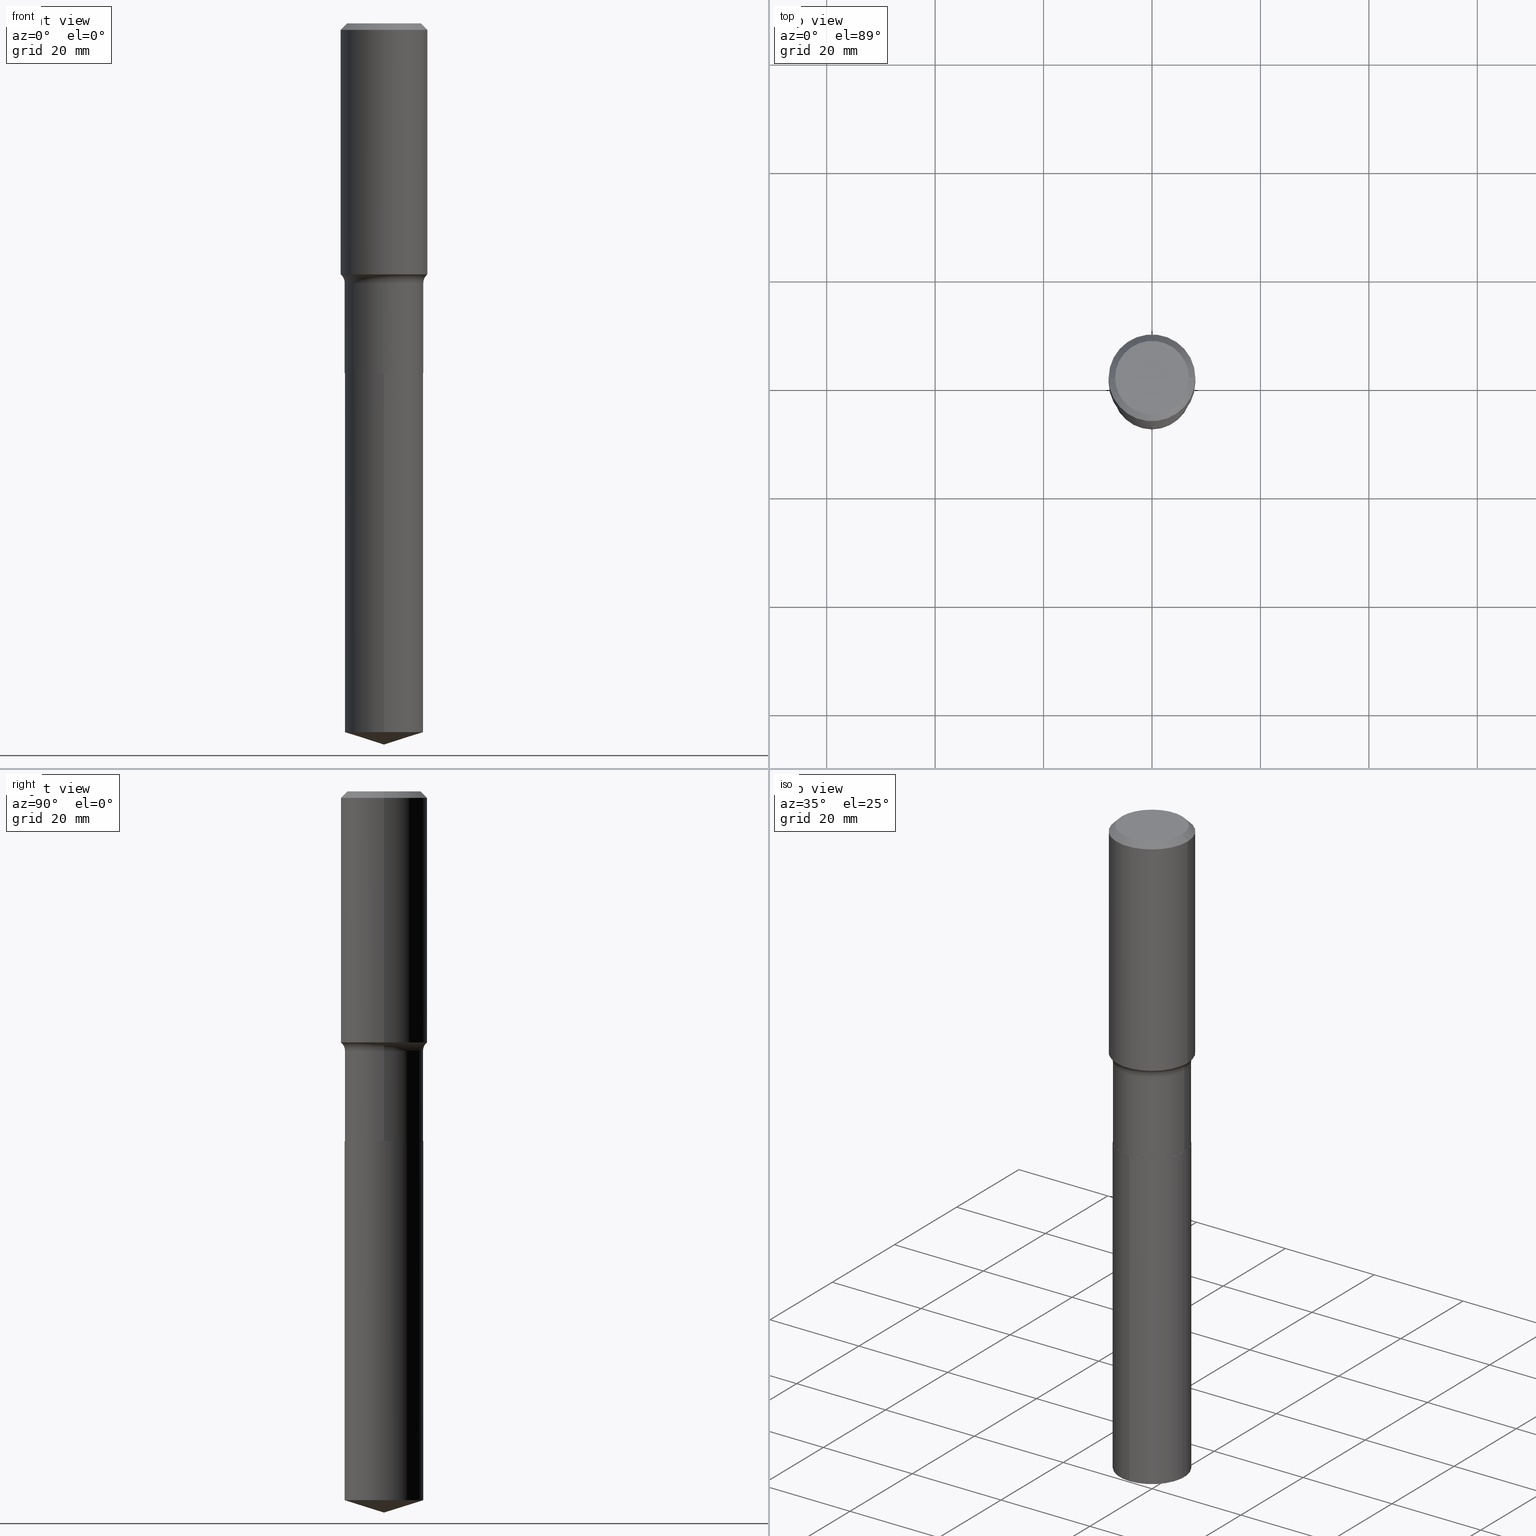
[diagram: canonical four-view strip — front | top / right | iso, engineering-drawing reading convention]
A machine part, canonical four-view strip (front | top / right | iso — engineering-drawing reading convention). The complete STEP part file that produces these views, byte-faithful:
ISO-10303-21;
HEADER;
FILE_DESCRIPTION (( 'STEP AP203' ),
    '1' );
FILE_NAME ('64201.STEP',
    '2024-04-19T15:35:36',
    ( '' ),
    ( '' ),
    'SwSTEP 2.0',
    'SolidWorks 2023',
    '' );
FILE_SCHEMA (( 'CONFIG_CONTROL_DESIGN' ));
ENDSEC;

DATA;
#1 = DIRECTION ( 'NONE',  ( -2.445468806185136597E-29, 3.491481338843145583E-15, 1.000000000000000000 ) ) ;
#2 = LINE ( 'NONE', #328, #372 ) ;
#3 = EDGE_CURVE ( 'NONE', #128, #392, #240, .T. ) ;
#4 = APPROVAL_STATUS ( 'not_yet_approved' ) ;
#5 = DIRECTION ( 'NONE',  ( 1.000000000000000000, -6.982962677686265922E-15, 0.000000000000000000 ) ) ;
#6 = CIRCLE ( 'NONE', #317, 0.2849499999999999811 ) ;
#7 = DIRECTION ( 'NONE',  ( -2.445468806185136597E-29, 3.491481338843145583E-15, 1.000000000000000000 ) ) ;
#8 = VECTOR ( 'NONE', #99, 39.37007874015748143 ) ;
#9 = DATE_TIME_ROLE ( 'creation_date' ) ;
#10 = DIRECTION ( 'NONE',  ( -2.445468806185136597E-29, 3.491481338843145583E-15, 1.000000000000000000 ) ) ;
#11 = FACE_OUTER_BOUND ( 'NONE', #176, .T. ) ;
#12 = ORIENTED_EDGE ( 'NONE', *, *, #414, .T. ) ;
#13 = ADVANCED_FACE ( 'NONE', ( #143 ), #189, .T. ) ;
#14 = FACE_OUTER_BOUND ( 'NONE', #419, .T. ) ;
#15 = VECTOR ( 'NONE', #369, 39.37007874015748854 ) ;
#16 = APPROVAL_PERSON_ORGANIZATION ( #97, #462, #125 ) ;
#17 = DIRECTION ( 'NONE',  ( -2.445468806185136877E-29, 3.491481338843145188E-15, 1.000000000000000000 ) ) ;
#18 = DIRECTION ( 'NONE',  ( -2.445468806185136597E-29, 3.491481338843145583E-15, 1.000000000000000000 ) ) ;
#19 = EDGE_LOOP ( 'NONE', ( #323, #160, #348, #206 ) ) ;
#20 = CONICAL_SURFACE ( 'NONE', #155, 124.8659371009152892, 1.265363707695892126 ) ;
#21 = AXIS2_PLACEMENT_3D ( 'NONE', #212, #404, #324 ) ;
#22 = CC_DESIGN_APPROVAL ( #238, ( #223 ) ) ;
#23 = VERTEX_POINT ( 'NONE', #256 ) ;
#24 = DIRECTION ( 'NONE',  ( -6.982962677686265922E-15, -1.000000000000000000, 3.828128209723963046E-15 ) ) ;
#25 = EDGE_CURVE ( 'NONE', #57, #211, #2, .T. ) ;
#26 = ORIENTED_EDGE ( 'NONE', *, *, #111, .F. ) ;
#27 = ADVANCED_FACE ( 'NONE', ( #224 ), #36, .T. ) ;
#28 = ORIENTED_EDGE ( 'NONE', *, *, #435, .F. ) ;
#29 = CIRCLE ( 'NONE', #399, 0.2854499999999999815 ) ;
#30 = AXIS2_PLACEMENT_3D ( 'NONE', #463, #126, #5 ) ;
#31 = EDGE_LOOP ( 'NONE', ( #12, #62 ) ) ;
#32 = DIRECTION ( 'NONE',  ( 1.000000000000000000, -6.982962677686265922E-15, 0.000000000000000000 ) ) ;
#33 = PLANE ( 'NONE',  #311 ) ;
#34 = DIRECTION ( 'NONE',  ( 1.000000000000000000, -6.982962677686263555E-15, 0.000000000000000000 ) ) ;
#35 = DIRECTION ( 'NONE',  ( -6.982962677686265922E-15, -1.000000000000000000, 3.828128209723963046E-15 ) ) ;
#36 = CONICAL_SURFACE ( 'NONE', #178, 0.2849499999999999811, 0.7853981633973801113 ) ;
#37 = CIRCLE ( 'NONE', #350, 0.3149500000000001743 ) ;
#38 = CARTESIAN_POINT ( 'NONE',  ( 6.210023486426536087E-29, -8.866267711858284157E-15, -2.539400000000000102 ) ) ;
#39 = APPROVAL_PERSON_ORGANIZATION ( #270, #471, #119 ) ;
#40 = ADVANCED_FACE ( 'NONE', ( #183 ), #444, .T. ) ;
#41 = LINE ( 'NONE', #334, #15 ) ;
#42 = DIRECTION ( 'NONE',  ( -2.445468806185136597E-29, 3.491481338843145583E-15, 1.000000000000000000 ) ) ;
#43 = FACE_OUTER_BOUND ( 'NONE', #319, .T. ) ;
#44 = DIRECTION ( 'NONE',  ( -2.445468806185136597E-29, 3.491481338843145583E-15, 1.000000000000000000 ) ) ;
#45 = VECTOR ( 'NONE', #336, 39.37007874015748143 ) ;
#46 = AXIS2_PLACEMENT_3D ( 'NONE', #458, #276, #347 ) ;
#47 = DATE_AND_TIME ( #113, #383 ) ;
#48 = DIRECTION ( 'NONE',  ( -0.7071067811865455743, 2.468850131082236945E-15, -0.7071067811865493491 ) ) ;
#49 = VERTEX_POINT ( 'NONE', #70 ) ;
#50 = COORDINATED_UNIVERSAL_TIME_OFFSET ( 5, 0, .BEHIND. ) ;
#51 = LINE ( 'NONE', #237, #335 ) ;
#52 = PRODUCT_RELATED_PRODUCT_CATEGORY ( 'detail', '', ( #75 ) ) ;
#53 = FACE_OUTER_BOUND ( 'NONE', #255, .T. ) ;
#54 = AXIS2_PLACEMENT_3D ( 'NONE', #340, #310, #118 ) ;
#55 = ADVANCED_FACE ( 'NONE', ( #376 ), #333, .F. ) ;
#56 = ORIENTED_EDGE ( 'NONE', *, *, #386, .F. ) ;
#57 = VERTEX_POINT ( 'NONE', #152 ) ;
#58 = PERSON_AND_ORGANIZATION ( #72, #483 ) ;
#59 = ORIENTED_EDGE ( 'NONE', *, *, #397, .F. ) ;
#60 = PRODUCT_DEFINITION ( 'UNKNOWN', '', #223, #304 ) ;
#61 = VECTOR ( 'NONE', #225, 39.37007874015748143 ) ;
#62 = ORIENTED_EDGE ( 'NONE', *, *, #63, .T. ) ;
#63 = EDGE_CURVE ( 'NONE', #393, #211, #29, .T. ) ;
#64 = ORIENTED_EDGE ( 'NONE', *, *, #374, .T. ) ;
#65 = DIRECTION ( 'NONE',  ( 7.105427357601001859E-15, 1.000000000000000000, -3.491481338843145583E-15 ) ) ;
#66 = VERTEX_POINT ( 'NONE', #263 ) ;
#67 = VECTOR ( 'NONE', #89, 39.37007874015748143 ) ;
#68 = DIRECTION ( 'NONE',  ( -6.982962677686265922E-15, -1.000000000000000000, 3.828128209723963046E-15 ) ) ;
#69 = CARTESIAN_POINT ( 'NONE',  ( -0.3149500000000000077, -1.025030018348669785E-15, -0.04724250000000026345 ) ) ;
#70 = CARTESIAN_POINT ( 'NONE',  ( 0.3149500000000001743, -8.560106517437202343E-15, -1.821811948795202252 ) ) ;
#71 = DIRECTION ( 'NONE',  ( -6.982962677686265133E-15, -1.000000000000000000, 3.500519750498698121E-15 ) ) ;
#72 = PERSON ( 'UNSPECIFIED', 'UNSPECIFIED', 'UNSPECIFIED', ('UNSPECIFIED'), ('UNSPECIFIED'), ('UNSPECIFIED') ) ;
#73 = ADVANCED_FACE ( 'NONE', ( #412 ), #20, .T. ) ;
#74 = APPROVAL_ROLE ( '' ) ;
#75 = PRODUCT ( '64201', '64201', '', ( #88 ) ) ;
#76 = CLOSED_SHELL ( 'NONE', ( #13, #478, #73, #40, #209 ) ) ;
#77 = CONICAL_SURFACE ( 'NONE', #365, 0.3149500000000000077, 0.7853981633974456145 ) ;
#78 = DIRECTION ( 'NONE',  ( -2.445329345240365459E-29, 3.491681054853681860E-15, 1.000000000000000000 ) ) ;
#79 = CC_DESIGN_APPROVAL ( #471, ( #60 ) ) ;
#80 = PERSON_AND_ORGANIZATION ( #72, #483 ) ;
#81 = DIRECTION ( 'NONE',  ( 1.000000000000000000, -6.982962677686263555E-15, 0.000000000000000000 ) ) ;
#82 = COORDINATED_UNIVERSAL_TIME_OFFSET ( 5, 0, .BEHIND. ) ;
#83 = DIRECTION ( 'NONE',  ( 1.000000000000000000, -6.982962677686265922E-15, 0.000000000000000000 ) ) ;
#84 = DIRECTION ( 'NONE',  ( 6.982962677686265922E-15, 1.000000000000000000, -3.491681054853681860E-15 ) ) ;
#85 = VECTOR ( 'NONE', #257, 39.37007874015748854 ) ;
#86 = EDGE_CURVE ( 'NONE', #434, #368, #261, .T. ) ;
#87 = LOCAL_TIME ( 11, 35, 36.00000000000000000, #50 ) ;
#88 = MECHANICAL_CONTEXT ( 'NONE', #345, 'mechanical' ) ;
#89 = DIRECTION ( 'NONE',  ( -2.445468806185136877E-29, 3.491481338843145188E-15, 1.000000000000000000 ) ) ;
#90 = CALENDAR_DATE ( 2024, 19, 4 ) ;
#91 = CARTESIAN_POINT ( 'NONE',  ( -0.3149500000000001743, -4.122968075823476488E-15, -1.821811948795202252 ) ) ;
#92 = EDGE_CURVE ( 'NONE', #66, #141, #258, .T. ) ;
#93 = DIRECTION ( 'NONE',  ( -1.000000000000000000, 6.982962677686266711E-15, 0.000000000000000000 ) ) ;
#94 = AXIS2_PLACEMENT_3D ( 'NONE', #121, #44, #165 ) ;
#95 = AXIS2_PLACEMENT_3D ( 'NONE', #492, #354, #298 ) ;
#96 = ORIENTED_EDGE ( 'NONE', *, *, #142, .T. ) ;
#97 = PERSON_AND_ORGANIZATION ( #72, #483 ) ;
#98 = ORIENTED_EDGE ( 'NONE', *, *, #106, .F. ) ;
#99 = DIRECTION ( 'NONE',  ( -0.7071067811864992780, 7.493145998870180611E-15, 0.7071067811865957564 ) ) ;
#100 = ORIENTED_EDGE ( 'NONE', *, *, #186, .T. ) ;
#101 = EDGE_CURVE ( 'NONE', #392, #128, #6, .T. ) ;
#102 = ORIENTED_EDGE ( 'NONE', *, *, #101, .T. ) ;
#103 = CARTESIAN_POINT ( 'NONE',  ( -0.2849499999999999811, -6.841576186309879206E-15, -2.539400000000000102 ) ) ;
#104 =( CONVERSION_BASED_UNIT ( 'INCH', #167 ) LENGTH_UNIT ( ) NAMED_UNIT ( #388 ) );
#105 = ORIENTED_EDGE ( 'NONE', *, *, #63, .F. ) ;
#106 = EDGE_CURVE ( 'NONE', #378, #477, #168, .T. ) ;
#107 = CARTESIAN_POINT ( 'NONE',  ( -8.346822120306016826E-28, 1.191851248845178902E-13, 34.13387874015747769 ) ) ;
#108 = AXIS2_PLACEMENT_3D ( 'NONE', #116, #42, #330 ) ;
#109 = CIRCLE ( 'NONE', #278, 0.3149500000000000077 ) ;
#110 = DIRECTION ( 'NONE',  ( -2.445329345240365459E-29, 3.491681054853681860E-15, 1.000000000000000000 ) ) ;
#111 = EDGE_CURVE ( 'NONE', #403, #23, #425, .T. ) ;
#112 = ORIENTED_EDGE ( 'NONE', *, *, #157, .T. ) ;
#113 = CALENDAR_DATE ( 2024, 19, 4 ) ;
#114 = ORIENTED_EDGE ( 'NONE', *, *, #275, .F. ) ;
#115 = CARTESIAN_POINT ( 'NONE',  ( 1.280423351754760394E-28, -1.828314033942484926E-14, -5.236200000000000188 ) ) ;
#116 = CARTESIAN_POINT ( 'NONE',  ( 4.604573215165994355E-29, -6.574110212907759252E-15, -1.882900000000000240 ) ) ;
#117 = DIRECTION ( 'NONE',  ( 2.438088387897960049E-29, -3.491481338843145188E-15, -1.000000000000000000 ) ) ;
#118 = DIRECTION ( 'NONE',  ( 1.000000000000000000, -6.982962677686265922E-15, 0.000000000000000000 ) ) ;
#119 = APPROVAL_ROLE ( '' ) ;
#120 = ADVANCED_FACE ( 'NONE', ( #53 ), #124, .F. ) ;
#121 = CARTESIAN_POINT ( 'NONE',  ( -1.001697619218022568E-46, 1.430158722866391086E-32, 4.096137381448112218E-18 ) ) ;
#122 = UNCERTAINTY_MEASURE_WITH_UNIT (LENGTH_MEASURE( 1.000000000000000082E-05 ), #104, 'distance_accuracy_value', 'NONE');
#123 = CARTESIAN_POINT ( 'NONE',  ( 1.155300600762019572E-30, -1.649463071502982046E-16, -0.04724250000000026345 ) ) ;
#124 = TOROIDAL_SURFACE ( 'NONE', #303, 0.3634499999999999398, 0.07799999999999995826 ) ;
#125 = APPROVAL_ROLE ( '' ) ;
#126 = DIRECTION ( 'NONE',  ( -2.445468806185136597E-29, 3.491481338843145583E-15, 1.000000000000000000 ) ) ;
#127 = CYLINDRICAL_SURFACE ( 'NONE', #454, 0.2854500000000000370 ) ;
#128 = VERTEX_POINT ( 'NONE', #346 ) ;
#129 = AXIS2_PLACEMENT_3D ( 'NONE', #285, #65, #136 ) ;
#130 =( NAMED_UNIT ( * ) SI_UNIT ( $, .STERADIAN. ) SOLID_ANGLE_UNIT ( ) );
#131 = EDGE_LOOP ( 'NONE', ( #251, #100, #355, #244 ) ) ;
#132 = APPROVAL_DATE_TIME ( #236, #462 ) ;
#133 = DIRECTION ( 'NONE',  ( 1.000000000000000000, -6.982962677686263555E-15, 0.000000000000000000 ) ) ;
#134 = FACE_OUTER_BOUND ( 'NONE', #169, .T. ) ;
#135 = ORIENTED_EDGE ( 'NONE', *, *, #92, .T. ) ;
#136 = DIRECTION ( 'NONE',  ( -1.000000000000000000, 7.105427357601001859E-15, 0.000000000000000000 ) ) ;
#137 =( NAMED_UNIT ( * ) PLANE_ANGLE_UNIT ( ) SI_UNIT ( $, .RADIAN. ) );
#138 = ORIENTED_EDGE ( 'NONE', *, *, #142, .F. ) ;
#139 = AXIS2_PLACEMENT_3D ( 'NONE', #371, #292, #332 ) ;
#140 = VECTOR ( 'NONE', #171, 39.37007874015748143 ) ;
#141 = VERTEX_POINT ( 'NONE', #467 ) ;
#142 = EDGE_CURVE ( 'NONE', #208, #378, #51, .T. ) ;
#143 = FACE_OUTER_BOUND ( 'NONE', #19, .T. ) ;
#144 = LINE ( 'NONE', #289, #85 ) ;
#145 = CARTESIAN_POINT ( 'NONE',  ( 6.210023486426536087E-29, -8.866267711858284157E-15, -2.539400000000000102 ) ) ;
#146 = DIRECTION ( 'NONE',  ( -2.445468806185136597E-29, 3.491481338843145583E-15, 1.000000000000000000 ) ) ;
#147 = AXIS2_PLACEMENT_3D ( 'NONE', #489, #146, #294 ) ;
#148 = ORIENTED_EDGE ( 'NONE', *, *, #175, .F. ) ;
#149 = EDGE_CURVE ( 'NONE', #49, #208, #164, .T. ) ;
#150 = CARTESIAN_POINT ( 'NONE',  ( 6.210023486426536087E-29, -8.866267711858284157E-15, -2.539400000000000102 ) ) ;
#151 = SECURITY_CLASSIFICATION_LEVEL ( 'unclassified' ) ;
#152 = CARTESIAN_POINT ( 'NONE',  ( -1.993286696345419132E-15, -0.2854500000000180782, -5.146197960714494535 ) ) ;
#153 = FACE_OUTER_BOUND ( 'NONE', #218, .T. ) ;
#154 = CC_DESIGN_PERSON_AND_ORGANIZATION_ASSIGNMENT ( #377, #415, ( #223 ) ) ;
#155 = AXIS2_PLACEMENT_3D ( 'NONE', #107, #110, #71 ) ;
#156 = DIRECTION ( 'NONE',  ( -2.445468806185136597E-29, 3.491481338843145583E-15, 1.000000000000000000 ) ) ;
#157 = EDGE_CURVE ( 'NONE', #406, #325, #259, .T. ) ;
#158 = PERSON_AND_ORGANIZATION_ROLE ( 'creator' ) ;
#159 = DIRECTION ( 'NONE',  ( 1.000000000000000000, -6.982962677686261977E-15, 0.000000000000000000 ) ) ;
#160 = ORIENTED_EDGE ( 'NONE', *, *, #405, .T. ) ;
#161 = DIRECTION ( 'NONE',  ( -2.445468806185136597E-29, 3.491481338843145583E-15, 1.000000000000000000 ) ) ;
#162 = ORIENTED_EDGE ( 'NONE', *, *, #3, .F. ) ;
#163 = CARTESIAN_POINT ( 'NONE',  ( -1.001697619218022568E-46, 1.430158722866391086E-32, 4.096137381448112218E-18 ) ) ;
#164 = CIRCLE ( 'NONE', #54, 0.3149500000000001743 ) ;
#165 = DIRECTION ( 'NONE',  ( 1.000000000000000000, -6.982962677686267499E-15, 4.876236838442819371E-29 ) ) ;
#166 = CALENDAR_DATE ( 2024, 19, 4 ) ;
#167 = LENGTH_MEASURE_WITH_UNIT ( LENGTH_MEASURE( 0.02539999999999999897 ), #250 );
#168 = CIRCLE ( 'NONE', #293, 0.3149500000000000077 ) ;
#169 = EDGE_LOOP ( 'NONE', ( #56, #461, #59 ) ) ;
#170 = VECTOR ( 'NONE', #48, 39.37007874015748854 ) ;
#171 = DIRECTION ( 'NONE',  ( -2.445468806185136877E-29, 3.491481338843145188E-15, 1.000000000000000000 ) ) ;
#172 = AXIS2_PLACEMENT_3D ( 'NONE', #448, #264, #35 ) ;
#173 = ORIENTED_EDGE ( 'NONE', *, *, #381, .T. ) ;
#174 = CARTESIAN_POINT ( 'NONE',  ( 0.2677074999999999871, -2.081133459643432233E-15, 4.096137381461924987E-18 ) ) ;
#175 = EDGE_CURVE ( 'NONE', #325, #406, #400, .T. ) ;
#176 = EDGE_LOOP ( 'NONE', ( #203, #407, #364, #475 ) ) ;
#177 = ORIENTED_EDGE ( 'NONE', *, *, #186, .F. ) ;
#178 = AXIS2_PLACEMENT_3D ( 'NONE', #187, #181, #81 ) ;
#179 = CIRCLE ( 'NONE', #465, 0.2854499999999999815 ) ;
#180 = ORIENTED_EDGE ( 'NONE', *, *, #192, .F. ) ;
#181 = DIRECTION ( 'NONE',  ( -2.445468806185136597E-29, 3.491481338843145583E-15, 1.000000000000000000 ) ) ;
#182 = FACE_OUTER_BOUND ( 'NONE', #436, .T. ) ;
#183 = FACE_OUTER_BOUND ( 'NONE', #362, .T. ) ;
#184 = CARTESIAN_POINT ( 'NONE',  ( 0.2854499999999999815, -8.567396909253303813E-15, -1.882900000000000240 ) ) ;
#185 = CIRCLE ( 'NONE', #30, 0.2854500000000000925 ) ;
#186 = EDGE_CURVE ( 'NONE', #141, #66, #185, .T. ) ;
#187 = CARTESIAN_POINT ( 'NONE',  ( 6.210023486426536087E-29, -8.866267711858284157E-15, -2.539400000000000102 ) ) ;
#188 = PERSON_AND_ORGANIZATION_ROLE ( 'design_supplier' ) ;
#189 = CYLINDRICAL_SURFACE ( 'NONE', #389, 0.2854499999999999815 ) ;
#190 = DIRECTION ( 'NONE',  ( 1.000000000000000000, -6.982962677686267499E-15, 4.876236838442819371E-29 ) ) ;
#191 = CYLINDRICAL_SURFACE ( 'NONE', #288, 0.3149500000000000632 ) ;
#192 = EDGE_CURVE ( 'NONE', #406, #378, #305, .T. ) ;
#193 = DATE_AND_TIME ( #421, #87 ) ;
#194 = AXIS2_PLACEMENT_3D ( 'NONE', #219, #450, #459 ) ;
#195 = DIRECTION ( 'NONE',  ( 1.000000000000000000, -6.982962677686265922E-15, 0.000000000000000000 ) ) ;
#196 = DIRECTION ( 'NONE',  ( 1.000000000000000000, -6.982962677686265922E-15, 4.876176775795935232E-29 ) ) ;
#197 = EDGE_CURVE ( 'NONE', #477, #378, #109, .T. ) ;
#198 = PERSON_AND_ORGANIZATION ( #72, #483 ) ;
#199 = CARTESIAN_POINT ( 'NONE',  ( 4.604573215165994355E-29, -6.574110212907759252E-15, -1.882900000000000240 ) ) ;
#200 = ORIENTED_EDGE ( 'NONE', *, *, #175, .T. ) ;
#201 = DIRECTION ( 'NONE',  ( 1.000000000000000000, -6.982962677686269077E-15, 4.883557194083112901E-29 ) ) ;
#202 = LOCAL_TIME ( 11, 35, 36.00000000000000000, #82 ) ;
#203 = ORIENTED_EDGE ( 'NONE', *, *, #374, .F. ) ;
#204 = ADVANCED_FACE ( 'NONE', ( #314 ), #207, .T. ) ;
#205 = SHAPE_DEFINITION_REPRESENTATION ( #315, #360 ) ;
#206 = ORIENTED_EDGE ( 'NONE', *, *, #25, .F. ) ;
#207 = CONICAL_SURFACE ( 'NONE', #46, 0.3149500000000000077, 0.7853981633974456145 ) ;
#208 = VERTEX_POINT ( 'NONE', #91 ) ;
#209 = ADVANCED_FACE ( 'NONE', ( #344 ), #274, .F. ) ;
#210 = ORIENTED_EDGE ( 'NONE', *, *, #92, .F. ) ;
#211 = VERTEX_POINT ( 'NONE', #427 ) ;
#212 = CARTESIAN_POINT ( 'NONE',  ( 6.210023486426536087E-29, -8.866267711858284157E-15, -2.539400000000000102 ) ) ;
#213 = CONICAL_SURFACE ( 'NONE', #373, 0.2849499999999999811, 0.7853981633973801113 ) ;
#214 = CC_DESIGN_DATE_AND_TIME_ASSIGNMENT ( #193, #9, ( #60 ) ) ;
#215 = CARTESIAN_POINT ( 'NONE',  ( 1.280494802269837352E-28, -1.828212602175054019E-14, -5.236200000000000188 ) ) ;
#216 = ORIENTED_EDGE ( 'NONE', *, *, #197, .F. ) ;
#217 = CARTESIAN_POINT ( 'NONE',  ( -8.346822120306016826E-28, 1.191851248845178902E-13, 34.13387874015747769 ) ) ;
#218 = EDGE_LOOP ( 'NONE', ( #112, #200 ) ) ;
#219 = CARTESIAN_POINT ( 'NONE',  ( 1.258450303687443268E-28, -1.796837476511629986E-14, -5.146197960714495423 ) ) ;
#220 = CC_DESIGN_PERSON_AND_ORGANIZATION_ASSIGNMENT ( #457, #231, ( #75 ) ) ;
#221 = CIRCLE ( 'NONE', #129, 0.07799999999999995826 ) ;
#222 = APPROVAL_DATE_TIME ( #307, #238 ) ;
#223 = PRODUCT_DEFINITION_FORMATION_WITH_SPECIFIED_SOURCE ( 'ANY', '', #75, .NOT_KNOWN. ) ;
#224 = FACE_OUTER_BOUND ( 'NONE', #253, .T. ) ;
#225 = DIRECTION ( 'NONE',  ( -2.445468806185136877E-29, 3.491481338843145188E-15, 1.000000000000000000 ) ) ;
#226 = APPROVAL_STATUS ( 'not_yet_approved' ) ;
#227 = EDGE_CURVE ( 'NONE', #49, #403, #326, .T. ) ;
#228 = EDGE_LOOP ( 'NONE', ( #280, #472, #484, #296 ) ) ;
#229 = DIRECTION ( 'NONE',  ( -1.000000000000000000, 6.982962677686265922E-15, -4.876176775795935793E-29 ) ) ;
#230 = DIRECTION ( 'NONE',  ( -2.445468806185136597E-29, 3.491481338843145583E-15, 1.000000000000000000 ) ) ;
#231 = PERSON_AND_ORGANIZATION_ROLE ( 'design_owner' ) ;
#232 = AXIS2_PLACEMENT_3D ( 'NONE', #271, #470, #159 ) ;
#233 = CARTESIAN_POINT ( 'NONE',  ( 0.000000000000000000, 0.000000000000000000, 0.000000000000000000 ) ) ;
#234 = APPROVAL_DATE_TIME ( #47, #471 ) ;
#235 = EDGE_CURVE ( 'NONE', #49, #477, #308, .T. ) ;
#236 = DATE_AND_TIME ( #166, #466 ) ;
#237 = CARTESIAN_POINT ( 'NONE',  ( -0.3149500000000000632, 2.237854346276435985E-15, -1.549218606675782956E-29 ) ) ;
#238 = APPROVAL ( #226, 'UNSPECIFIED' ) ;
#239 = CARTESIAN_POINT ( 'NONE',  ( 4.455184291514020558E-29, -6.360822422099914050E-15, -1.821811948795202252 ) ) ;
#240 = CIRCLE ( 'NONE', #464, 0.2849499999999999811 ) ;
#241 = ORIENTED_EDGE ( 'NONE', *, *, #435, .T. ) ;
#242 = DATE_TIME_ROLE ( 'classification_date' ) ;
#243 = EDGE_CURVE ( 'NONE', #23, #403, #179, .T. ) ;
#244 = ORIENTED_EDGE ( 'NONE', *, *, #243, .F. ) ;
#245 = COORDINATED_UNIVERSAL_TIME_OFFSET ( 5, 0, .BEHIND. ) ;
#246 = DIRECTION ( 'NONE',  ( 1.000000000000000000, -6.982962677686265922E-15, 0.000000000000000000 ) ) ;
#247 = CC_DESIGN_PERSON_AND_ORGANIZATION_ASSIGNMENT ( #80, #158, ( #60 ) ) ;
#248 = ORIENTED_EDGE ( 'NONE', *, *, #313, .T. ) ;
#249 = FACE_OUTER_BOUND ( 'NONE', #131, .T. ) ;
#250 =( LENGTH_UNIT ( ) NAMED_UNIT ( * ) SI_UNIT ( $, .METRE. ) );
#251 = ORIENTED_EDGE ( 'NONE', *, *, #422, .F. ) ;
#252 = CYLINDRICAL_SURFACE ( 'NONE', #343, 0.2854500000000000370 ) ;
#253 = EDGE_LOOP ( 'NONE', ( #102, #248, #210, #28 ) ) ;
#254 = CARTESIAN_POINT ( 'NONE',  ( 6.210023486426536087E-29, -8.866267711858284157E-15, -2.539400000000000102 ) ) ;
#255 = EDGE_LOOP ( 'NONE', ( #114, #301, #269, #279 ) ) ;
#256 = CARTESIAN_POINT ( 'NONE',  ( -0.2854499999999999815, -5.691071852821104709E-15, -1.882900000000000240 ) ) ;
#257 = DIRECTION ( 'NONE',  ( 0.7071067811865455743, -7.319954787623248157E-15, -0.7071067811865493491 ) ) ;
#258 = CIRCLE ( 'NONE', #431, 0.2854500000000000925 ) ;
#259 = CIRCLE ( 'NONE', #432, 0.2677074999999999871 ) ;
#260 = ADVANCED_FACE ( 'NONE', ( #14 ), #127, .T. ) ;
#261 = LINE ( 'NONE', #215, #45 ) ;
#262 = CARTESIAN_POINT ( 'NONE',  ( 0.2849499999999999811, -1.085606292686498571E-14, -2.539400000000000102 ) ) ;
#263 = CARTESIAN_POINT ( 'NONE',  ( 0.2854500000000000925, -1.085780866753440800E-14, -2.538899999999999935 ) ) ;
#264 = DIRECTION ( 'NONE',  ( -2.445329345240365459E-29, 3.491681054853681860E-15, 1.000000000000000000 ) ) ;
#265 = ORIENTED_EDGE ( 'NONE', *, *, #381, .F. ) ;
#266 = CARTESIAN_POINT ( 'NONE',  ( 0.2849499999999999811, -1.085606292686498571E-14, -2.539400000000000102 ) ) ;
#267 = ADVANCED_FACE ( 'NONE', ( #11 ), #77, .T. ) ;
#268 = AXIS2_PLACEMENT_3D ( 'NONE', #352, #161, #195 ) ;
#269 = ORIENTED_EDGE ( 'NONE', *, *, #243, .T. ) ;
#270 = PERSON_AND_ORGANIZATION ( #72, #483 ) ;
#271 = CARTESIAN_POINT ( 'NONE',  ( 0.3634499999999999398, -9.112067998112831859E-15, -1.882900000000000240 ) ) ;
#272 = CARTESIAN_POINT ( 'NONE',  ( -0.2677074999999999871, 1.951864634611843833E-15, 4.096137381434750116E-18 ) ) ;
#273 = DIRECTION ( 'NONE',  ( 2.445329345240365179E-29, -3.491681054853681860E-15, -1.000000000000000000 ) ) ;
#274 = PLANE ( 'NONE',  #482 ) ;
#275 = EDGE_CURVE ( 'NONE', #208, #49, #37, .T. ) ;
#276 = DIRECTION ( 'NONE',  ( 2.445468806185136597E-29, -3.491481338843145583E-15, -1.000000000000000000 ) ) ;
#277 = DIRECTION ( 'NONE',  ( -2.445468806185136597E-29, 3.491481338843145583E-15, 1.000000000000000000 ) ) ;
#278 = AXIS2_PLACEMENT_3D ( 'NONE', #123, #10, #385 ) ;
#279 = ORIENTED_EDGE ( 'NONE', *, *, #227, .F. ) ;
#280 = ORIENTED_EDGE ( 'NONE', *, *, #329, .F. ) ;
#281 = MANIFOLD_SOLID_BREP ( 'Body-Move/Copy2[1]', #76 ) ;
#282 = LINE ( 'NONE', #103, #8 ) ;
#283 = DIRECTION ( 'NONE',  ( -6.982962677686265133E-15, -1.000000000000000000, 3.500519750498698121E-15 ) ) ;
#284 = ORIENTED_EDGE ( 'NONE', *, *, #101, .F. ) ;
#285 = CARTESIAN_POINT ( 'NONE',  ( -0.3634499999999999398, -3.991642639787675555E-15, -1.882900000000000240 ) ) ;
#286 = DIRECTION ( 'NONE',  ( -2.445468806185136597E-29, 3.491481338843145583E-15, 1.000000000000000000 ) ) ;
#287 = ORIENTED_EDGE ( 'NONE', *, *, #422, .T. ) ;
#288 = AXIS2_PLACEMENT_3D ( 'NONE', #341, #7, #306 ) ;
#289 = CARTESIAN_POINT ( 'NONE',  ( 0.3149500000000000077, -2.325660151548442036E-15, -0.04724250000000026345 ) ) ;
#290 = ORIENTED_EDGE ( 'NONE', *, *, #235, .F. ) ;
#291 = DIRECTION ( 'NONE',  ( -2.445329345240365459E-29, 3.491681054853681860E-15, 1.000000000000000000 ) ) ;
#292 = DIRECTION ( 'NONE',  ( -2.445329345240365459E-29, 3.491681054853681860E-15, 1.000000000000000000 ) ) ;
#293 = AXIS2_PLACEMENT_3D ( 'NONE', #391, #156, #428 ) ;
#294 = DIRECTION ( 'NONE',  ( 1.000000000000000000, -6.982962677686266711E-15, 4.876176775795936353E-29 ) ) ;
#295 = CC_DESIGN_SECURITY_CLASSIFICATION ( #366, ( #223 ) ) ;
#296 = ORIENTED_EDGE ( 'NONE', *, *, #111, .T. ) ;
#297 = CARTESIAN_POINT ( 'NONE',  ( 2.028244239227267775E-15, 0.2854499999999910997, -2.539400000000001434 ) ) ;
#298 = DIRECTION ( 'NONE',  ( 1.000000000000000000, 0.000000000000000000, 0.000000000000000000 ) ) ;
#299 = DIRECTION ( 'NONE',  ( 1.000000000000000000, -6.982962677686263555E-15, 0.000000000000000000 ) ) ;
#300 = ADVANCED_FACE ( 'NONE', ( #481 ), #213, .T. ) ;
#301 = ORIENTED_EDGE ( 'NONE', *, *, #329, .T. ) ;
#302 = CARTESIAN_POINT ( 'NONE',  ( -0.2854500000000000370, 2.028244239227206244E-15, -1.404110021513263065E-29 ) ) ;
#303 = AXIS2_PLACEMENT_3D ( 'NONE', #460, #230, #201 ) ;
#304 = DESIGN_CONTEXT ( 'detailed design', #395, 'design' ) ;
#305 = LINE ( 'NONE', #384, #170 ) ;
#306 = DIRECTION ( 'NONE',  ( 1.000000000000000000, -6.982962677686266711E-15, 4.876176775795936353E-29 ) ) ;
#307 = DATE_AND_TIME ( #375, #202 ) ;
#308 = LINE ( 'NONE', #424, #67 ) ;
#309 = ORIENTED_EDGE ( 'NONE', *, *, #275, .T. ) ;
#310 = DIRECTION ( 'NONE',  ( -2.445468806185136597E-29, 3.491481338843145583E-15, 1.000000000000000000 ) ) ;
#311 = AXIS2_PLACEMENT_3D ( 'NONE', #453, #117, #229 ) ;
#312 = DIRECTION ( 'NONE',  ( 2.445468806185136597E-29, -3.491481338843145583E-15, -1.000000000000000000 ) ) ;
#313 = EDGE_CURVE ( 'NONE', #128, #141, #282, .T. ) ;
#314 = FACE_OUTER_BOUND ( 'NONE', #438, .T. ) ;
#315 = PRODUCT_DEFINITION_SHAPE ( 'NONE', 'NONE',  #60 ) ;
#316 = CARTESIAN_POINT ( 'NONE',  ( 0.000000000000000000, 0.000000000000000000, 0.000000000000000000 ) ) ;
#317 = AXIS2_PLACEMENT_3D ( 'NONE', #150, #410, #299 ) ;
#318 = CIRCLE ( 'NONE', #172, 0.2854499999999999815 ) ;
#319 = EDGE_LOOP ( 'NONE', ( #138, #309, #491, #98 ) ) ;
#320 = DIRECTION ( 'NONE',  ( 1.000000000000000000, -6.982962677686265922E-15, 4.876176775795935232E-29 ) ) ;
#321 = ORIENTED_EDGE ( 'NONE', *, *, #363, .F. ) ;
#322 = ADVANCED_FACE ( 'NONE', ( #249 ), #252, .T. ) ;
#323 = ORIENTED_EDGE ( 'NONE', *, *, #397, .T. ) ;
#324 = DIRECTION ( 'NONE',  ( 1.000000000000000000, -6.982962677686265922E-15, 4.876176775795935793E-29 ) ) ;
#325 = VERTEX_POINT ( 'NONE', #174 ) ;
#326 = CIRCLE ( 'NONE', #232, 0.07799999999999995826 ) ;
#327 = FACE_OUTER_BOUND ( 'NONE', #416, .T. ) ;
#328 = CARTESIAN_POINT ( 'NONE',  ( -1.993286696345482241E-15, -0.2854500000000088633, -2.539399999999999213 ) ) ;
#329 = EDGE_CURVE ( 'NONE', #208, #23, #221, .T. ) ;
#330 = DIRECTION ( 'NONE',  ( 1.000000000000000000, -6.982962677686269077E-15, 4.883557194083112901E-29 ) ) ;
#331 = CYLINDRICAL_SURFACE ( 'NONE', #147, 0.3149500000000000632 ) ;
#332 = DIRECTION ( 'NONE',  ( -6.982962677686265922E-15, -1.000000000000000000, 3.828128209723963046E-15 ) ) ;
#333 = TOROIDAL_SURFACE ( 'NONE', #108, 0.3634499999999999398, 0.07799999999999995826 ) ;
#334 = CARTESIAN_POINT ( 'NONE',  ( 1.280423351754760394E-28, -1.828314033942484926E-14, -5.236200000000000188 ) ) ;
#335 = VECTOR ( 'NONE', #17, 39.37007874015748143 ) ;
#336 = DIRECTION ( 'NONE',  ( 6.776566513254257349E-15, 0.9537169507482289310, 0.3007057995042667353 ) ) ;
#337 = CARTESIAN_POINT ( 'NONE',  ( 2.028244239227332461E-15, 0.2854499999999911553, -2.539400000000001434 ) ) ;
#338 = PERSON_AND_ORGANIZATION ( #72, #483 ) ;
#339 = DIRECTION ( 'NONE',  ( -2.445329345240365459E-29, 3.491681054853681860E-15, 1.000000000000000000 ) ) ;
#340 = CARTESIAN_POINT ( 'NONE',  ( 4.455184291514020558E-29, -6.360822422099914050E-15, -1.821811948795202252 ) ) ;
#341 = CARTESIAN_POINT ( 'NONE',  ( 0.000000000000000000, 0.000000000000000000, 0.000000000000000000 ) ) ;
#342 = CC_DESIGN_PERSON_AND_ORGANIZATION_ASSIGNMENT ( #58, #469, ( #366 ) ) ;
#343 = AXIS2_PLACEMENT_3D ( 'NONE', #316, #433, #320 ) ;
#344 = FACE_OUTER_BOUND ( 'NONE', #31, .T. ) ;
#345 = APPLICATION_CONTEXT ( 'configuration controlled 3d designs of mechanical parts and assemblies' ) ;
#346 = CARTESIAN_POINT ( 'NONE',  ( -0.2849499999999999811, -6.838926959135767216E-15, -2.539400000000000102 ) ) ;
#347 = DIRECTION ( 'NONE',  ( -1.000000000000000000, 6.982962677686266711E-15, 0.000000000000000000 ) ) ;
#348 = ORIENTED_EDGE ( 'NONE', *, *, #414, .F. ) ;
#349 = CLOSED_SHELL ( 'NONE', ( #27, #204, #473, #120, #260, #322, #55, #468, #267, #456, #357, #300 ) ) ;
#350 = AXIS2_PLACEMENT_3D ( 'NONE', #239, #18, #246 ) ;
#351 = CC_DESIGN_APPROVAL ( #462, ( #366 ) ) ;
#352 = CARTESIAN_POINT ( 'NONE',  ( 4.604573215165994355E-29, -6.574110212907759252E-15, -1.882900000000000240 ) ) ;
#353 = APPROVAL_STATUS ( 'not_yet_approved' ) ;
#354 = DIRECTION ( 'NONE',  ( 0.000000000000000000, 0.000000000000000000, 1.000000000000000000 ) ) ;
#355 = ORIENTED_EDGE ( 'NONE', *, *, #363, .T. ) ;
#356 = ORIENTED_EDGE ( 'NONE', *, *, #3, .T. ) ;
#357 = ADVANCED_FACE ( 'NONE', ( #327 ), #402, .F. ) ;
#358 = DIRECTION ( 'NONE',  ( -2.445329345240365459E-29, 3.491681054853681860E-15, 1.000000000000000000 ) ) ;
#359 = ORIENTED_EDGE ( 'NONE', *, *, #197, .T. ) ;
#360 = ADVANCED_BREP_SHAPE_REPRESENTATION ( '64201', ( #281, #447, #95 ), #390 ) ;
#361 = CARTESIAN_POINT ( 'NONE',  ( 0.3149500000000000077, -2.364230402487588149E-15, -0.04724250000000026345 ) ) ;
#362 = EDGE_LOOP ( 'NONE', ( #437, #173, #441, #105 ) ) ;
#363 = EDGE_CURVE ( 'NONE', #66, #403, #486, .T. ) ;
#364 = ORIENTED_EDGE ( 'NONE', *, *, #192, .T. ) ;
#365 = AXIS2_PLACEMENT_3D ( 'NONE', #429, #312, #93 ) ;
#366 = SECURITY_CLASSIFICATION ( '', '', #151 ) ;
#367 = CARTESIAN_POINT ( 'NONE',  ( 6.208800752023443286E-29, -8.864521971188861865E-15, -2.538899999999999935 ) ) ;
#368 = VERTEX_POINT ( 'NONE', #476 ) ;
#369 = DIRECTION ( 'NONE',  ( -6.659769872151632089E-15, -0.9537169507482267106, 0.3007057995042733411 ) ) ;
#370 = CC_DESIGN_PERSON_AND_ORGANIZATION_ASSIGNMENT ( #338, #188, ( #223 ) ) ;
#371 = CARTESIAN_POINT ( 'NONE',  ( 6.210023486426536087E-29, -8.866267711858284157E-15, -2.539400000000000102 ) ) ;
#372 = VECTOR ( 'NONE', #78, 39.37007874015748143 ) ;
#373 = AXIS2_PLACEMENT_3D ( 'NONE', #254, #286, #133 ) ;
#374 = EDGE_CURVE ( 'NONE', #325, #477, #144, .T. ) ;
#375 = CALENDAR_DATE ( 2024, 19, 4 ) ;
#376 = FACE_OUTER_BOUND ( 'NONE', #228, .T. ) ;
#377 = PERSON_AND_ORGANIZATION ( #72, #483 ) ;
#378 = VERTEX_POINT ( 'NONE', #69 ) ;
#379 = DIRECTION ( 'NONE',  ( -2.445329345240365459E-29, 3.491681054853681860E-15, 1.000000000000000000 ) ) ;
#380 = DIRECTION ( 'NONE',  ( -2.445468806185136597E-29, 3.491481338843145583E-15, 1.000000000000000000 ) ) ;
#381 = EDGE_CURVE ( 'NONE', #368, #57, #417, .T. ) ;
#382 = CIRCLE ( 'NONE', #194, 0.2854499999999999815 ) ;
#383 = LOCAL_TIME ( 11, 35, 36.00000000000000000, #451 ) ;
#384 = CARTESIAN_POINT ( 'NONE',  ( -0.3149500000000000077, 2.034337788186991592E-15, -0.04724250000000026345 ) ) ;
#385 = DIRECTION ( 'NONE',  ( 1.000000000000000000, -6.982962677686266711E-15, 0.000000000000000000 ) ) ;
#386 = EDGE_CURVE ( 'NONE', #434, #57, #41, .T. ) ;
#387 = CARTESIAN_POINT ( 'NONE',  ( 6.210023486426536087E-29, -8.866267711858284157E-15, -2.539400000000000102 ) ) ;
#388 = DIMENSIONAL_EXPONENTS ( 1.000000000000000000, 0.000000000000000000, 0.000000000000000000, 0.000000000000000000, 0.000000000000000000, 0.000000000000000000, 0.000000000000000000 ) ;
#389 = AXIS2_PLACEMENT_3D ( 'NONE', #145, #339, #68 ) ;
#390 =( GEOMETRIC_REPRESENTATION_CONTEXT ( 3 ) GLOBAL_UNCERTAINTY_ASSIGNED_CONTEXT ( ( #122 ) ) GLOBAL_UNIT_ASSIGNED_CONTEXT ( ( #104, #137, #130 ) ) REPRESENTATION_CONTEXT ( 'NONE', 'WORKASPACE' ) );
#391 = CARTESIAN_POINT ( 'NONE',  ( 1.155300600762019572E-30, -1.649463071502982046E-16, -0.04724250000000026345 ) ) ;
#392 = VERTEX_POINT ( 'NONE', #262 ) ;
#393 = VERTEX_POINT ( 'NONE', #337 ) ;
#394 = COORDINATED_UNIVERSAL_TIME_OFFSET ( 5, 0, .BEHIND. ) ;
#395 = APPLICATION_CONTEXT ( 'configuration controlled 3d designs of mechanical parts and assemblies' ) ;
#396 = ORIENTED_EDGE ( 'NONE', *, *, #86, .F. ) ;
#397 = EDGE_CURVE ( 'NONE', #57, #368, #382, .T. ) ;
#398 = DIRECTION ( 'NONE',  ( -2.445329345240365459E-29, 3.491681054853681860E-15, 1.000000000000000000 ) ) ;
#399 = AXIS2_PLACEMENT_3D ( 'NONE', #38, #291, #442 ) ;
#400 = CIRCLE ( 'NONE', #94, 0.2677074999999999871 ) ;
#401 = ORIENTED_EDGE ( 'NONE', *, *, #313, .F. ) ;
#402 = PLANE ( 'NONE',  #21 ) ;
#403 = VERTEX_POINT ( 'NONE', #184 ) ;
#404 = DIRECTION ( 'NONE',  ( -2.438088387897960049E-29, 3.491481338843145188E-15, 1.000000000000000000 ) ) ;
#405 = EDGE_CURVE ( 'NONE', #368, #393, #445, .T. ) ;
#406 = VERTEX_POINT ( 'NONE', #272 ) ;
#407 = ORIENTED_EDGE ( 'NONE', *, *, #157, .F. ) ;
#408 = AXIS2_PLACEMENT_3D ( 'NONE', #439, #398, #24 ) ;
#409 = APPROVAL_PERSON_ORGANIZATION ( #198, #238, #74 ) ;
#410 = DIRECTION ( 'NONE',  ( -2.445468806185136597E-29, 3.491481338843145583E-15, 1.000000000000000000 ) ) ;
#411 = LINE ( 'NONE', #302, #61 ) ;
#412 = FACE_OUTER_BOUND ( 'NONE', #446, .T. ) ;
#413 = LINE ( 'NONE', #266, #443 ) ;
#414 = EDGE_CURVE ( 'NONE', #211, #393, #318, .T. ) ;
#415 = PERSON_AND_ORGANIZATION_ROLE ( 'creator' ) ;
#416 = EDGE_LOOP ( 'NONE', ( #284, #162 ) ) ;
#417 = CIRCLE ( 'NONE', #408, 0.2854499999999999815 ) ;
#418 = APPLICATION_PROTOCOL_DEFINITION ( 'international standard', 'config_control_design', 1994, #395 ) ;
#419 = EDGE_LOOP ( 'NONE', ( #135, #287, #26, #321 ) ) ;
#420 = DIRECTION ( 'NONE',  ( 0.7071067811864992780, -2.468850131081751401E-15, 0.7071067811865957564 ) ) ;
#421 = CALENDAR_DATE ( 2024, 19, 4 ) ;
#422 = EDGE_CURVE ( 'NONE', #141, #23, #411, .T. ) ;
#423 = DIRECTION ( 'NONE',  ( -2.445468806185136597E-29, 3.491481338843145583E-15, 1.000000000000000000 ) ) ;
#424 = CARTESIAN_POINT ( 'NONE',  ( 0.3149500000000000632, -2.199284095337290265E-15, 1.535751875536930410E-29 ) ) ;
#425 = CIRCLE ( 'NONE', #268, 0.2854499999999999815 ) ;
#426 = CONICAL_SURFACE ( 'NONE', #490, 124.8659371009152892, 1.265363707695892126 ) ;
#427 = CARTESIAN_POINT ( 'NONE',  ( -1.993286696345482241E-15, -0.2854500000000088633, -2.539399999999999213 ) ) ;
#428 = DIRECTION ( 'NONE',  ( 1.000000000000000000, -6.982962677686266711E-15, 0.000000000000000000 ) ) ;
#429 = CARTESIAN_POINT ( 'NONE',  ( 1.155300600762019572E-30, -1.649463071502982046E-16, -0.04724250000000026345 ) ) ;
#430 = DATE_AND_TIME ( #90, #455 ) ;
#431 = AXIS2_PLACEMENT_3D ( 'NONE', #367, #1, #32 ) ;
#432 = AXIS2_PLACEMENT_3D ( 'NONE', #163, #380, #190 ) ;
#433 = DIRECTION ( 'NONE',  ( -2.445468806185136597E-29, 3.491481338843145583E-15, 1.000000000000000000 ) ) ;
#434 = VERTEX_POINT ( 'NONE', #115 ) ;
#435 = EDGE_CURVE ( 'NONE', #392, #66, #413, .T. ) ;
#436 = EDGE_LOOP ( 'NONE', ( #485, #96, #216, #290 ) ) ;
#437 = ORIENTED_EDGE ( 'NONE', *, *, #405, .F. ) ;
#438 = EDGE_LOOP ( 'NONE', ( #148, #64, #359, #180 ) ) ;
#439 = CARTESIAN_POINT ( 'NONE',  ( 1.258450303687443268E-28, -1.796837476511629986E-14, -5.146197960714495423 ) ) ;
#440 = APPLICATION_PROTOCOL_DEFINITION ( 'international standard', 'config_control_design', 1994, #345 ) ;
#441 = ORIENTED_EDGE ( 'NONE', *, *, #25, .T. ) ;
#442 = DIRECTION ( 'NONE',  ( -6.982962677686265922E-15, -1.000000000000000000, 3.828128209723963046E-15 ) ) ;
#443 = VECTOR ( 'NONE', #420, 39.37007874015748143 ) ;
#444 = CYLINDRICAL_SURFACE ( 'NONE', #139, 0.2854499999999999815 ) ;
#445 = LINE ( 'NONE', #297, #474 ) ;
#446 = EDGE_LOOP ( 'NONE', ( #396, #488, #265 ) ) ;
#447 = MANIFOLD_SOLID_BREP ( 'Body-Move/Copy2[2]', #349 ) ;
#448 = CARTESIAN_POINT ( 'NONE',  ( 6.210023486426536087E-29, -8.866267711858284157E-15, -2.539400000000000102 ) ) ;
#449 = CARTESIAN_POINT ( 'NONE',  ( 6.210023486426536087E-29, -8.866267711858284157E-15, -2.539400000000000102 ) ) ;
#450 = DIRECTION ( 'NONE',  ( -2.445329345240365459E-29, 3.491681054853681860E-15, 1.000000000000000000 ) ) ;
#451 = COORDINATED_UNIVERSAL_TIME_OFFSET ( 5, 0, .BEHIND. ) ;
#452 = DIRECTION ( 'NONE',  ( -2.445468806185136597E-29, 3.491481338843145583E-15, 1.000000000000000000 ) ) ;
#453 = CARTESIAN_POINT ( 'NONE',  ( -5.008488096090112840E-47, 7.150793614331955432E-33, 2.048068690724056109E-18 ) ) ;
#454 = AXIS2_PLACEMENT_3D ( 'NONE', #233, #277, #196 ) ;
#455 = LOCAL_TIME ( 11, 35, 36.00000000000000000, #245 ) ;
#456 = ADVANCED_FACE ( 'NONE', ( #153 ), #33, .F. ) ;
#457 = PERSON_AND_ORGANIZATION ( #72, #483 ) ;
#458 = CARTESIAN_POINT ( 'NONE',  ( 1.155300600762019572E-30, -1.649463071502982046E-16, -0.04724250000000026345 ) ) ;
#459 = DIRECTION ( 'NONE',  ( -6.982962677686265922E-15, -1.000000000000000000, 3.828128209723963046E-15 ) ) ;
#460 = CARTESIAN_POINT ( 'NONE',  ( 4.604573215165994355E-29, -6.574110212907759252E-15, -1.882900000000000240 ) ) ;
#461 = ORIENTED_EDGE ( 'NONE', *, *, #86, .T. ) ;
#462 = APPROVAL ( #353, 'UNSPECIFIED' ) ;
#463 = CARTESIAN_POINT ( 'NONE',  ( 6.208800752023443286E-29, -8.864521971188861865E-15, -2.538899999999999935 ) ) ;
#464 = AXIS2_PLACEMENT_3D ( 'NONE', #449, #452, #34 ) ;
#465 = AXIS2_PLACEMENT_3D ( 'NONE', #199, #423, #83 ) ;
#466 = LOCAL_TIME ( 11, 35, 36.00000000000000000, #394 ) ;
#467 = CARTESIAN_POINT ( 'NONE',  ( -0.2854500000000000925, -5.691071852821104709E-15, -2.538899999999999935 ) ) ;
#468 = ADVANCED_FACE ( 'NONE', ( #43 ), #191, .T. ) ;
#469 = PERSON_AND_ORGANIZATION_ROLE ( 'classification_officer' ) ;
#470 = DIRECTION ( 'NONE',  ( -6.982962677686266711E-15, -1.000000000000000000, 3.491481338843145583E-15 ) ) ;
#471 = APPROVAL ( #4, 'UNSPECIFIED' ) ;
#472 = ORIENTED_EDGE ( 'NONE', *, *, #149, .F. ) ;
#473 = ADVANCED_FACE ( 'NONE', ( #182 ), #331, .T. ) ;
#474 = VECTOR ( 'NONE', #379, 39.37007874015748143 ) ;
#475 = ORIENTED_EDGE ( 'NONE', *, *, #106, .T. ) ;
#476 = CARTESIAN_POINT ( 'NONE',  ( 2.028244239227332461E-15, 0.2854499999999821069, -5.146197960714496311 ) ) ;
#477 = VERTEX_POINT ( 'NONE', #361 ) ;
#478 = ADVANCED_FACE ( 'NONE', ( #134 ), #426, .T. ) ;
#479 = EDGE_LOOP ( 'NONE', ( #401, #356, #241, #177 ) ) ;
#480 = CARTESIAN_POINT ( 'NONE',  ( 0.2854500000000000370, -1.993286696345544956E-15, 1.391904660650949962E-29 ) ) ;
#481 = FACE_OUTER_BOUND ( 'NONE', #479, .T. ) ;
#482 = AXIS2_PLACEMENT_3D ( 'NONE', #387, #273, #84 ) ;
#483 = ORGANIZATION ( 'UNSPECIFIED', 'UNSPECIFIED', '' ) ;
#484 = ORIENTED_EDGE ( 'NONE', *, *, #227, .T. ) ;
#485 = ORIENTED_EDGE ( 'NONE', *, *, #149, .T. ) ;
#486 = LINE ( 'NONE', #480, #140 ) ;
#487 = CC_DESIGN_DATE_AND_TIME_ASSIGNMENT ( #430, #242, ( #366 ) ) ;
#488 = ORIENTED_EDGE ( 'NONE', *, *, #386, .T. ) ;
#489 = CARTESIAN_POINT ( 'NONE',  ( 0.000000000000000000, 0.000000000000000000, 0.000000000000000000 ) ) ;
#490 = AXIS2_PLACEMENT_3D ( 'NONE', #217, #358, #283 ) ;
#491 = ORIENTED_EDGE ( 'NONE', *, *, #235, .T. ) ;
#492 = CARTESIAN_POINT ( 'NONE',  ( 0.000000000000000000, 0.000000000000000000, 0.000000000000000000 ) ) ;
ENDSEC;
END-ISO-10303-21;
